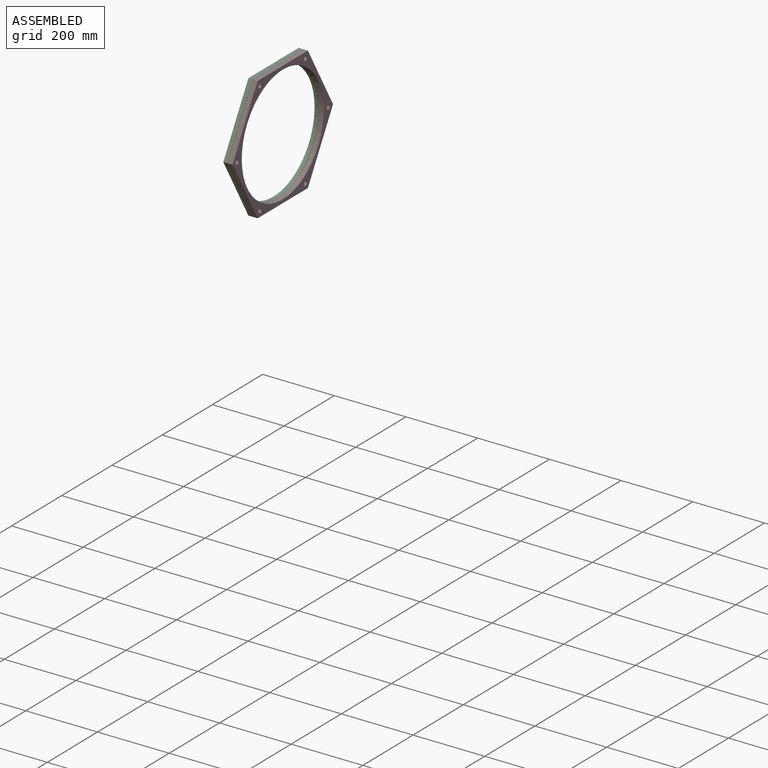
[diagram: assembled view]
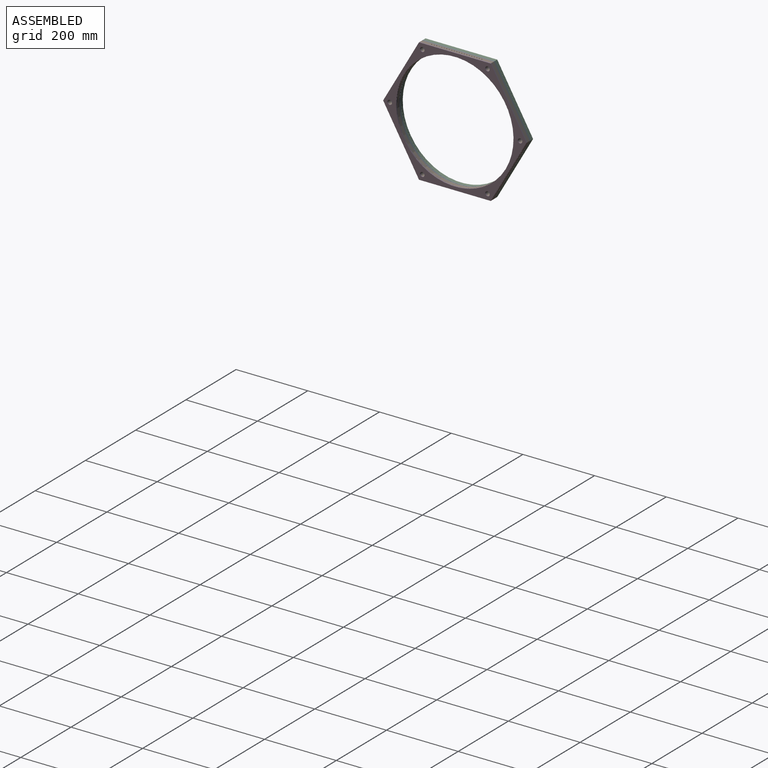
[diagram: assembled view, second angle]
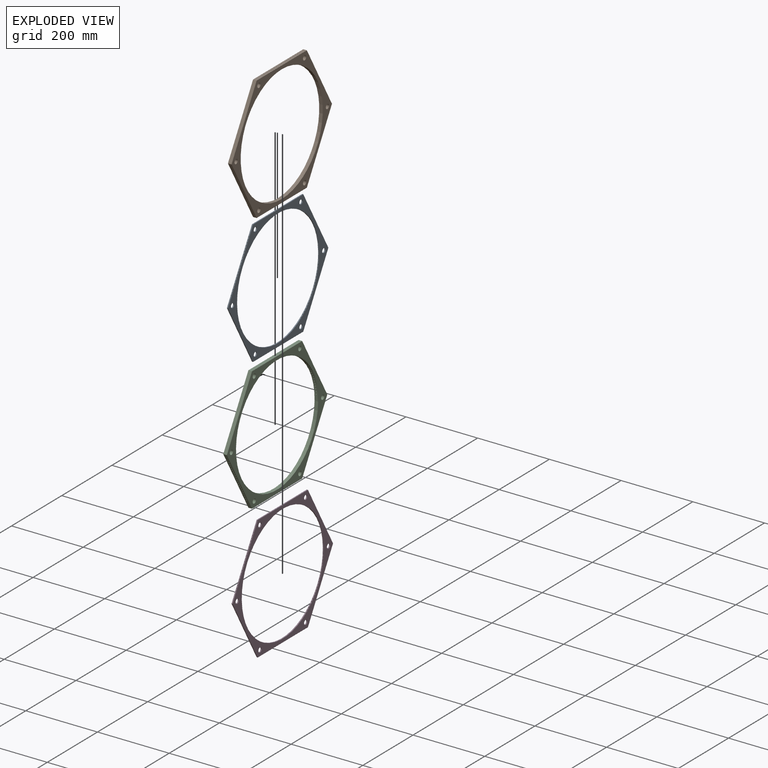
[diagram: exploded view]
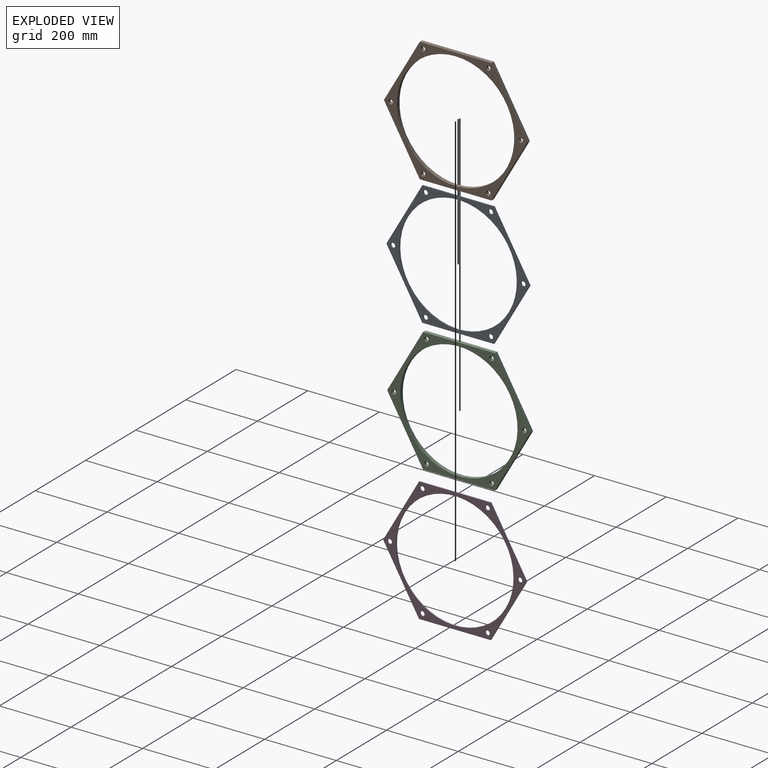
[diagram: exploded view, second angle]
ASSEMBLY  parts=4 mates=9
PART A: 57 faces, bbox 3x400x346.4 mm
  f0: plane 173.21x100mm, normal (0,0.87,0.5), area 600mm2, adj f1,f12,f13,f14
  f1: plane 200x3mm, normal (0,0,1), area 534mm2, adj f0,f2,f13,f14,f15,f17,f19,f21
  f2: plane 173.21x100mm, normal (0,-0.87,0.5), area 600mm2, adj f1,f3,f13,f14
  f3: plane 173.21x100mm, normal (0,-0.87,-0.5), area 600mm2, adj f2,f4,f13,f14
  f4: plane 200x3mm, normal (0,0,-1), area 534mm2, adj f3,f12,f13,f14,f16,f18,f20,f22
  f5: cylinder r=6.25mm len=12.5mm, axis (-1,0,0), area 117.8mm2, adj f13,f14
  f6: cylinder r=6.25mm len=12.5mm, axis (-1,0,0), area 117.8mm2, adj f13,f14
  f7: cylinder r=6.25mm len=12.5mm, axis (-1,0,0), area 117.8mm2, adj f13,f14
  f8: cylinder r=6.25mm len=12.5mm, axis (-1,0,0), area 117.8mm2, adj f13,f14
  f9: cylinder r=6.25mm len=12.5mm, axis (-1,0,0), area 117.8mm2, adj f13,f14
  f10: cylinder r=6.25mm len=12.5mm, axis (-1,0,0), area 117.8mm2, adj f13,f14
  f11: cylinder r=163.64mm len=327.27mm, axis (-1,0,0), area 2955.8mm2, adj f13,f14,f15,f16,f17,f18,f19,f20
  f12: plane 173.21x100mm, normal (0,0.87,-0.5), area 600mm2, adj f0,f4,f13,f14
  f13: plane 400x346.41mm, normal (1,0,0), area 19064.8mm2, adj f0,f1,f2,f3,f4,f5,f6,f7
  f14: plane 400x346.41mm, normal (-1,0,0), area 19064.8mm2, adj f0,f1,f2,f3,f4,f5,f6,f7
  f15: cylinder r=1mm len=22.6mm, axis (0,0,1), area 139.4mm2, adj f1,f11
  f16: cylinder r=1mm len=22.6mm, axis (0,0,1), area 139.4mm2, adj f4,f11
  f17: cylinder r=1mm len=22.6mm, axis (0,0,1), area 139.4mm2, adj f1,f11
  f18: cylinder r=1mm len=22.6mm, axis (0,0,1), area 139.4mm2, adj f4,f11
  f19: cylinder r=1mm len=25.77mm, axis (0,0,1), area 159mm2, adj f1,f11
  f20: cylinder r=1mm len=25.77mm, axis (0,0,1), area 159mm2, adj f4,f11
  f21: cylinder r=1mm len=9.76mm, axis (0,0,1), area 61.1mm2, adj f1,f11
  f22: cylinder r=1mm len=9.76mm, axis (0,0,1), area 61.1mm2, adj f4,f11
  f23: cylinder r=1mm len=17.39mm, axis (0,0,1), area 107.3mm2, adj f1,f11
  f24: cylinder r=1mm len=17.39mm, axis (0,0,1), area 107.3mm2, adj f4,f11
  f25: cylinder r=1mm len=11.05mm, axis (0,0,1), area 68.6mm2, adj f1,f11
  f26: cylinder r=1mm len=11.05mm, axis (0,0,1), area 68.6mm2, adj f4,f11
  f27: cylinder r=1mm len=15.32mm, axis (0,0,1), area 94.6mm2, adj f1,f11
  f28: cylinder r=1mm len=15.32mm, axis (0,0,1), area 94.6mm2, adj f4,f11
  f29: cylinder r=1mm len=10.26mm, axis (0,0,1), area 63.9mm2, adj f1,f11
  f30: cylinder r=1mm len=10.26mm, axis (0,0,1), area 63.9mm2, adj f4,f11
  f31: cylinder r=1mm len=13.58mm, axis (0,0,1), area 83.9mm2, adj f1,f11
  f32: cylinder r=1mm len=13.58mm, axis (0,0,1), area 83.9mm2, adj f4,f11
  f33: cylinder r=1mm len=13.58mm, axis (0,0,1), area 83.9mm2, adj f1,f11
  f34: cylinder r=1mm len=13.58mm, axis (0,0,1), area 83.9mm2, adj f4,f11
  f35: cylinder r=1mm len=19.82mm, axis (0,0,1), area 122.2mm2, adj f1,f11
  f36: cylinder r=1mm len=19.82mm, axis (0,0,1), area 122.2mm2, adj f4,f11
  f37: cylinder r=1mm len=25.77mm, axis (0,0,1), area 159mm2, adj f1,f11
  f38: cylinder r=1mm len=25.77mm, axis (0,0,1), area 159mm2, adj f4,f11
  f39: cylinder r=1mm len=19.82mm, axis (0,0,1), area 122.2mm2, adj f1,f11
  f40: cylinder r=1mm len=19.82mm, axis (0,0,1), area 122.2mm2, adj f4,f11
  f41: cylinder r=1mm len=12.16mm, axis (0,0,1), area 75.3mm2, adj f1,f11
  f42: cylinder r=1mm len=12.16mm, axis (0,0,1), area 75.3mm2, adj f4,f11
  f43: cylinder r=1mm len=17.39mm, axis (0,0,1), area 107.3mm2, adj f1,f11
  f44: cylinder r=1mm len=17.39mm, axis (0,0,1), area 107.3mm2, adj f4,f11
  f45: cylinder r=1mm len=12.16mm, axis (0,0,1), area 75.3mm2, adj f1,f11
  f46: cylinder r=1mm len=12.16mm, axis (0,0,1), area 75.3mm2, adj f4,f11
  f47: cylinder r=1mm len=11.05mm, axis (0,0,1), area 68.6mm2, adj f1,f11
  f48: cylinder r=1mm len=11.05mm, axis (0,0,1), area 68.6mm2, adj f4,f11
  f49: cylinder r=1mm len=15.32mm, axis (0,0,1), area 94.6mm2, adj f1,f11
  f50: cylinder r=1mm len=15.32mm, axis (0,0,1), area 94.6mm2, adj f4,f11
  f51: cylinder r=1mm len=10.26mm, axis (0,0,1), area 63.9mm2, adj f1,f11
  f52: cylinder r=1mm len=10.26mm, axis (0,0,1), area 63.9mm2, adj f4,f11
  f53: cylinder r=1mm len=9.76mm, axis (0,0,1), area 61.1mm2, adj f1,f11
  f54: cylinder r=1mm len=9.76mm, axis (0,0,1), area 61.1mm2, adj f4,f11
  f55: cylinder r=1mm len=9.57mm, axis (0,0,1), area 60.1mm2, adj f4,f11
  f56: cylinder r=1mm len=9.57mm, axis (0,0,1), area 60.1mm2, adj f1,f11
PART B: 36 faces, bbox 10x400x346.4 mm
  f0: plane 200x10mm, normal (0,0,1), area 1934mm2, adj f1,f11,f13,f14,f15,f16,f17,f18
  f1: plane 173.21x100mm, normal (0,-0.87,0.5), area 2000mm2, adj f0,f2,f13,f14
  f2: plane 173.21x100mm, normal (0,-0.87,-0.5), area 2000mm2, adj f1,f3,f13,f14
  f3: plane 200x10mm, normal (0,0,-1), area 2000mm2, adj f2,f4,f13,f14
  f4: plane 173.21x100mm, normal (0,0.87,-0.5), area 2000mm2, adj f3,f11,f13,f14
  f5: cylinder r=6.25mm len=12.5mm, axis (-1,0,0), area 392.7mm2, adj f13,f14
  f6: cylinder r=6.25mm len=12.5mm, axis (-1,0,0), area 392.7mm2, adj f13,f14
  f7: cylinder r=6.25mm len=12.5mm, axis (-1,0,0), area 392.7mm2, adj f13,f14
  f8: cylinder r=6.25mm len=12.5mm, axis (-1,0,0), area 392.7mm2, adj f13,f14
  f9: cylinder r=6.25mm len=12.5mm, axis (-1,0,0), area 392.7mm2, adj f13,f14
  f10: cylinder r=163.64mm len=327.27mm, axis (-1,0,0), area 10209mm2, adj f13,f14,f15,f16,f17,f18,f19,f20
  f11: plane 173.21x100mm, normal (0,0.87,0.5), area 2000mm2, adj f0,f4,f13,f14
  f12: cylinder r=6.25mm len=12.5mm, axis (-1,0,0), area 392.7mm2, adj f13,f14
  f13: plane 400x346.41mm, normal (1,0,0), area 19064.8mm2, adj f0,f1,f2,f3,f4,f5,f6,f7
  f14: plane 400x346.41mm, normal (-1,0,0), area 19064.8mm2, adj f0,f1,f2,f3,f4,f5,f6,f7
  f15: cylinder r=1mm len=22.6mm, axis (0,0,1), area 139.4mm2, adj f0,f10
  f16: cylinder r=1mm len=22.6mm, axis (0,0,1), area 139.4mm2, adj f0,f10
  f17: cylinder r=1mm len=25.77mm, axis (0,0,1), area 159mm2, adj f0,f10
  f18: cylinder r=1mm len=9.76mm, axis (0,0,1), area 61.1mm2, adj f0,f10
  f19: cylinder r=1mm len=17.39mm, axis (0,0,1), area 107.3mm2, adj f0,f10
  f20: cylinder r=1mm len=11.05mm, axis (0,0,1), area 68.6mm2, adj f0,f10
  f21: cylinder r=1mm len=15.32mm, axis (0,0,1), area 94.6mm2, adj f0,f10
  f22: cylinder r=1mm len=10.26mm, axis (0,0,1), area 63.9mm2, adj f0,f10
  f23: cylinder r=1mm len=13.58mm, axis (0,0,1), area 83.9mm2, adj f0,f10
  f24: cylinder r=1mm len=13.58mm, axis (0,0,1), area 83.9mm2, adj f0,f10
  f25: cylinder r=1mm len=19.82mm, axis (0,0,1), area 122.2mm2, adj f0,f10
  f26: cylinder r=1mm len=25.77mm, axis (0,0,1), area 159mm2, adj f0,f10
  f27: cylinder r=1mm len=19.82mm, axis (0,0,1), area 122.2mm2, adj f0,f10
  f28: cylinder r=1mm len=12.16mm, axis (0,0,1), area 75.3mm2, adj f0,f10
  f29: cylinder r=1mm len=17.39mm, axis (0,0,1), area 107.3mm2, adj f0,f10
  f30: cylinder r=1mm len=12.16mm, axis (0,0,1), area 75.3mm2, adj f0,f10
  f31: cylinder r=1mm len=11.05mm, axis (0,0,1), area 68.6mm2, adj f0,f10
  f32: cylinder r=1mm len=15.32mm, axis (0,0,1), area 94.6mm2, adj f0,f10
  f33: cylinder r=1mm len=10.26mm, axis (0,0,1), area 63.9mm2, adj f0,f10
  f34: cylinder r=1mm len=9.76mm, axis (0,0,1), area 61.1mm2, adj f0,f10
  f35: cylinder r=1mm len=9.57mm, axis (0,0,1), area 60.1mm2, adj f0,f10
PART C: 57 faces, bbox 10x400x346.4 mm
  f0: plane 200x10mm, normal (0,0,1), area 1934mm2, adj f1,f11,f13,f14,f15,f17,f19,f21
  f1: plane 173.21x100mm, normal (0,-0.87,0.5), area 2000mm2, adj f0,f2,f13,f14
  f2: plane 173.21x100mm, normal (0,-0.87,-0.5), area 2000mm2, adj f1,f3,f13,f14
  f3: plane 200x10mm, normal (0,0,-1), area 1934mm2, adj f2,f4,f13,f14,f16,f18,f20,f22
  f4: plane 173.21x100mm, normal (0,0.87,-0.5), area 2000mm2, adj f3,f11,f13,f14
  f5: cylinder r=6.25mm len=12.5mm, axis (-1,0,0), area 392.7mm2, adj f13,f14
  f6: cylinder r=6.25mm len=12.5mm, axis (-1,0,0), area 392.7mm2, adj f13,f14
  f7: cylinder r=6.25mm len=12.5mm, axis (-1,0,0), area 392.7mm2, adj f13,f14
  f8: cylinder r=6.25mm len=12.5mm, axis (-1,0,0), area 392.7mm2, adj f13,f14
  f9: cylinder r=6.25mm len=12.5mm, axis (-1,0,0), area 392.7mm2, adj f13,f14
  f10: cylinder r=163.64mm len=327.27mm, axis (-1,0,0), area 10152.9mm2, adj f13,f14,f15,f16,f17,f18,f19,f20
  f11: plane 173.21x100mm, normal (0,0.87,0.5), area 2000mm2, adj f0,f4,f13,f14
  f12: cylinder r=6.25mm len=12.5mm, axis (-1,0,0), area 392.7mm2, adj f13,f14
  f13: plane 400x346.41mm, normal (1,0,0), area 19064.8mm2, adj f0,f1,f2,f3,f4,f5,f6,f7
  f14: plane 400x346.41mm, normal (-1,0,0), area 19064.8mm2, adj f0,f1,f2,f3,f4,f5,f6,f7
  f15: cylinder r=1mm len=22.6mm, axis (0,0,1), area 139.4mm2, adj f0,f10
  f16: cylinder r=1mm len=22.6mm, axis (0,0,1), area 139.4mm2, adj f3,f10
  f17: cylinder r=1mm len=22.6mm, axis (0,0,1), area 139.4mm2, adj f0,f10
  f18: cylinder r=1mm len=22.6mm, axis (0,0,1), area 139.4mm2, adj f3,f10
  f19: cylinder r=1mm len=25.77mm, axis (0,0,1), area 159mm2, adj f0,f10
  f20: cylinder r=1mm len=25.77mm, axis (0,0,1), area 159mm2, adj f3,f10
  f21: cylinder r=1mm len=9.76mm, axis (0,0,1), area 61.1mm2, adj f0,f10
  f22: cylinder r=1mm len=9.76mm, axis (0,0,1), area 61.1mm2, adj f3,f10
  f23: cylinder r=1mm len=17.39mm, axis (0,0,1), area 107.3mm2, adj f0,f10
  f24: cylinder r=1mm len=17.39mm, axis (0,0,1), area 107.3mm2, adj f3,f10
  f25: cylinder r=1mm len=11.05mm, axis (0,0,1), area 68.6mm2, adj f0,f10
  f26: cylinder r=1mm len=11.05mm, axis (0,0,1), area 68.6mm2, adj f3,f10
  f27: cylinder r=1mm len=15.32mm, axis (0,0,1), area 94.6mm2, adj f0,f10
  f28: cylinder r=1mm len=15.32mm, axis (0,0,1), area 94.6mm2, adj f3,f10
  f29: cylinder r=1mm len=10.26mm, axis (0,0,1), area 63.9mm2, adj f0,f10
  f30: cylinder r=1mm len=10.26mm, axis (0,0,1), area 63.9mm2, adj f3,f10
  f31: cylinder r=1mm len=13.58mm, axis (0,0,1), area 83.9mm2, adj f0,f10
  f32: cylinder r=1mm len=13.58mm, axis (0,0,1), area 83.9mm2, adj f3,f10
  f33: cylinder r=1mm len=13.58mm, axis (0,0,1), area 83.9mm2, adj f0,f10
  f34: cylinder r=1mm len=13.58mm, axis (0,0,1), area 83.9mm2, adj f3,f10
  f35: cylinder r=1mm len=19.82mm, axis (0,0,1), area 122.2mm2, adj f0,f10
  f36: cylinder r=1mm len=19.82mm, axis (0,0,1), area 122.2mm2, adj f3,f10
  f37: cylinder r=1mm len=25.77mm, axis (0,0,1), area 159mm2, adj f0,f10
  f38: cylinder r=1mm len=25.77mm, axis (0,0,1), area 159mm2, adj f3,f10
  f39: cylinder r=1mm len=19.82mm, axis (0,0,1), area 122.2mm2, adj f0,f10
  f40: cylinder r=1mm len=19.82mm, axis (0,0,1), area 122.2mm2, adj f3,f10
  f41: cylinder r=1mm len=12.16mm, axis (0,0,1), area 75.3mm2, adj f0,f10
  f42: cylinder r=1mm len=12.16mm, axis (0,0,1), area 75.3mm2, adj f3,f10
  f43: cylinder r=1mm len=17.39mm, axis (0,0,1), area 107.3mm2, adj f0,f10
  f44: cylinder r=1mm len=17.39mm, axis (0,0,1), area 107.3mm2, adj f3,f10
  f45: cylinder r=1mm len=12.16mm, axis (0,0,1), area 75.3mm2, adj f0,f10
  f46: cylinder r=1mm len=12.16mm, axis (0,0,1), area 75.3mm2, adj f3,f10
  f47: cylinder r=1mm len=11.05mm, axis (0,0,1), area 68.6mm2, adj f0,f10
  f48: cylinder r=1mm len=11.05mm, axis (0,0,1), area 68.6mm2, adj f3,f10
  f49: cylinder r=1mm len=15.32mm, axis (0,0,1), area 94.6mm2, adj f0,f10
  f50: cylinder r=1mm len=15.32mm, axis (0,0,1), area 94.6mm2, adj f3,f10
  f51: cylinder r=1mm len=10.26mm, axis (0,0,1), area 63.9mm2, adj f0,f10
  f52: cylinder r=1mm len=10.26mm, axis (0,0,1), area 63.9mm2, adj f3,f10
  f53: cylinder r=1mm len=9.76mm, axis (0,0,1), area 61.1mm2, adj f0,f10
  f54: cylinder r=1mm len=9.76mm, axis (0,0,1), area 61.1mm2, adj f3,f10
  f55: cylinder r=1mm len=9.57mm, axis (0,0,1), area 60.1mm2, adj f3,f10
  f56: cylinder r=1mm len=9.57mm, axis (0,0,1), area 60.1mm2, adj f0,f10
PART D: same geometry as A
PLACE A rot(axis=(-1,0,0),120deg) t=(464.33,225.77,-69.09)mm
PLACE B t=(470.83,225.77,-69.09)mm fixed
PLACE C rot(axis=(-1,0,0),60deg) t=(457.83,225.77,-69.09)mm
PLACE D rot(axis=(1,0,0),60deg) t=(477.33,225.77,-69.09)mm
MATE parallel D.f0 <-> B.f35  axis (0,0,1) through (477.33,225.77,104.11)mm
MATE planar C.f10 <-> A.f11  axis (1,0,0) through (462.83,225.77,-69.09)mm
MATE parallel A.f3 <-> B.f35  axis (0,0,1) through (464.33,225.77,104.11)mm
MATE planar D.f9 <-> B.f10  axis (-1,0,0) through (475.83,316.68,-226.55)mm
MATE planar A.f11 <-> B.f8  axis (1,0,0) through (465.83,225.77,-69.09)mm
MATE parallel D.f19 <-> B.f1  axis (0,-0.87,0.5) through (477.33,40.77,-43.11)mm
MATE parallel C.f1 <-> B.f35  axis (0,0,1) through (457.83,225.77,104.11)mm
MATE parallel A.f55 <-> B.f1  axis (0,-0.87,0.5) through (464.33,75.77,17.51)mm
MATE parallel C.f55 <-> B.f11  axis (0,0.87,0.5) through (457.83,375.77,17.51)mm
